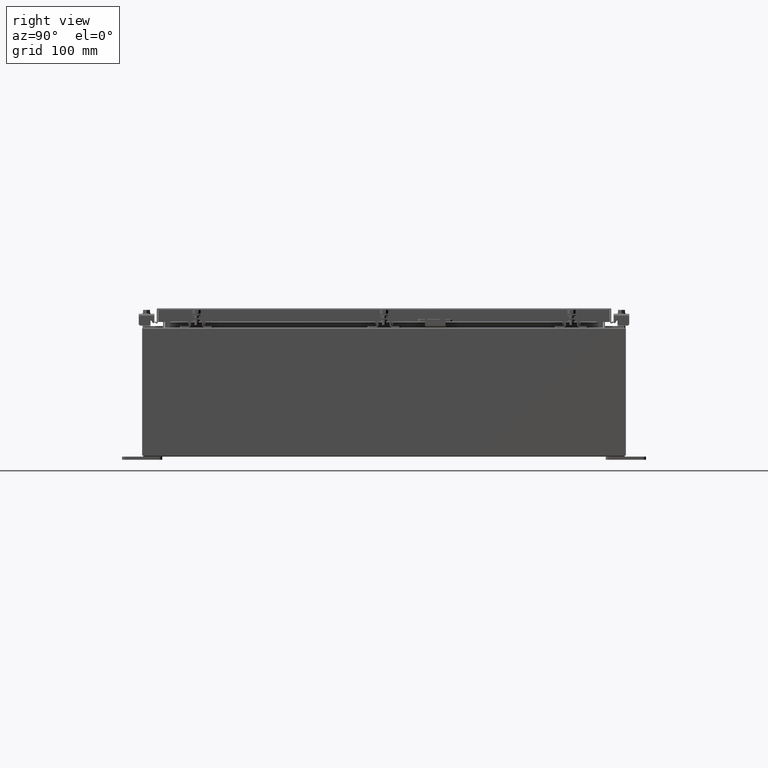
[diagram: clean part render]
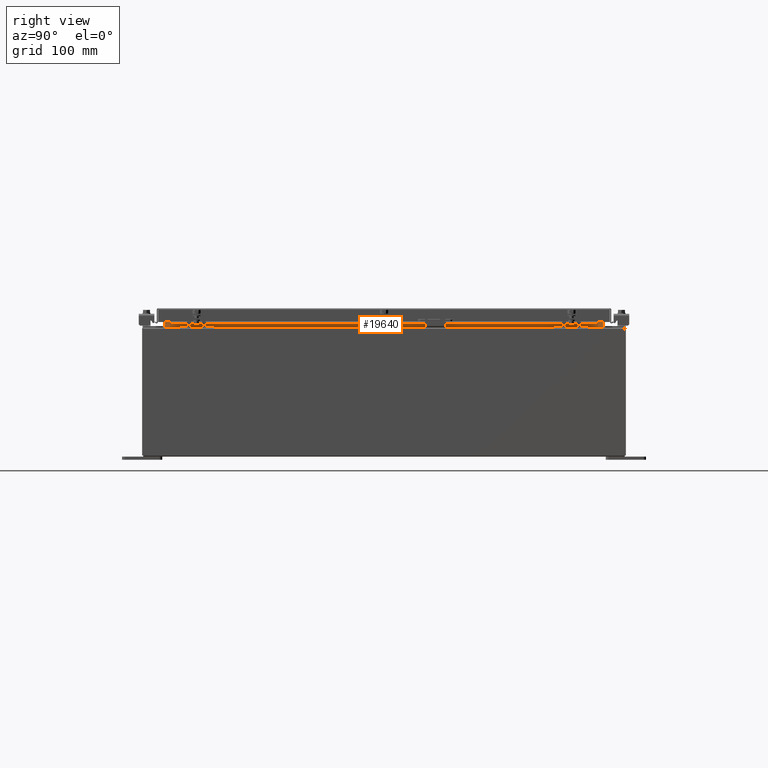
[diagram: same view with one face highlighted and labeled with its STEP entity id]
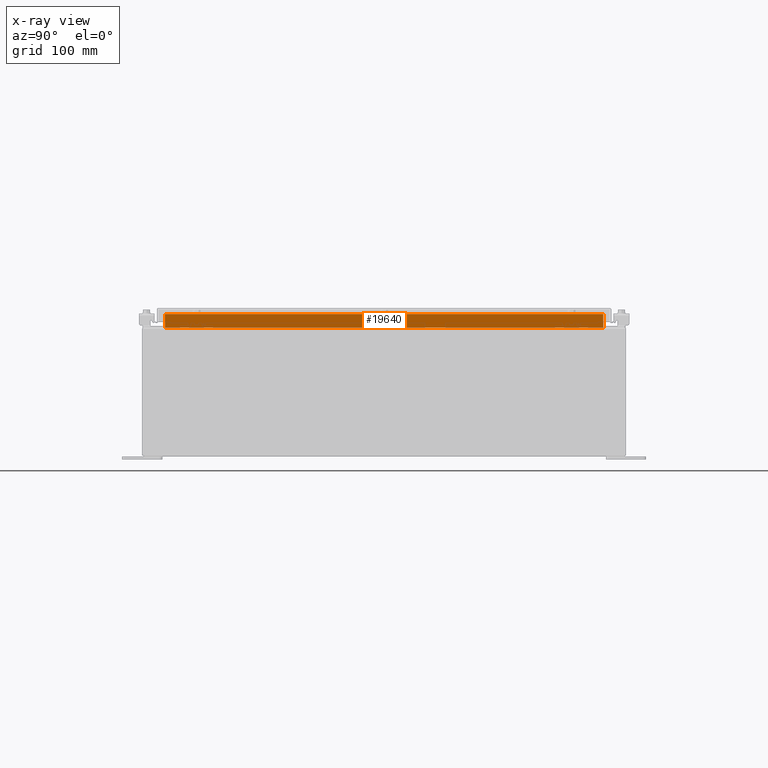
[diagram: x-ray of the same camera — body ghosted, the highlighted face saturated]
A machine part, right view. The second image highlights one B-rep face of the part: STEP entity #19640.
The next image is the same camera in x-ray: the body ghosted, the highlighted face saturated — about 0% of this face is hidden behind the body in this view.
In plain terms, the highlighted planar face has unit normal (1, 0, -0).
Its self-contained STEP definition (entity closure, byte-faithful):
#411 = DIRECTION ( 'NONE',  ( 2.361913319930201500E-015, -0.0000000000000000000, 1.000000000000000000 ) ) ;
#627 = LINE ( 'NONE', #20013, #23762 ) ;
#4323 = AXIS2_PLACEMENT_3D ( 'NONE', #5830, #8896, #30000 ) ;
#5830 = CARTESIAN_POINT ( 'NONE',  ( 13.69970000000001100, 0.0000000000000000000, -3.235532467496111900E-014 ) ) ;
#5954 = CARTESIAN_POINT ( 'NONE',  ( 13.69970000000003200, -13.59375000000000200, 8.762900000000007200 ) ) ;
#6684 = LINE ( 'NONE', #5954, #29831 ) ;
#7911 = ORIENTED_EDGE ( 'NONE', *, *, #34698, .F. ) ;
#8896 = DIRECTION ( 'NONE',  ( 1.000000000000000000, 0.0000000000000000000, -2.361913319930196000E-015 ) ) ;
#9010 = DIRECTION ( 'NONE',  ( 0.0000000000000000000, 1.000000000000000000, 0.0000000000000000000 ) ) ;
#9083 = EDGE_CURVE ( 'NONE', #11130, #16846, #627, .T. ) ;
#10277 = VECTOR ( 'NONE', #411, 39.37007874015748100 ) ;
#10893 = ORIENTED_EDGE ( 'NONE', *, *, #22227, .F. ) ;
#11130 = VERTEX_POINT ( 'NONE', #18227 ) ;
#11282 = CARTESIAN_POINT ( 'NONE',  ( 13.69970000000003000, 13.59375000000000200, 7.938300000000007900 ) ) ;
#13637 = FACE_OUTER_BOUND ( 'NONE', #20169, .T. ) ;
#15348 = CARTESIAN_POINT ( 'NONE',  ( 13.69970000000003000, -13.59375000000000400, 7.938300000000010600 ) ) ;
#15736 = CARTESIAN_POINT ( 'NONE',  ( 13.69970000000003000, 13.59374999999998600, 7.938300000000010600 ) ) ;
#16669 = ORIENTED_EDGE ( 'NONE', *, *, #17692, .F. ) ;
#16846 = VERTEX_POINT ( 'NONE', #15736 ) ;
#17692 = EDGE_CURVE ( 'NONE', #24405, #11130, #6684, .T. ) ;
#18227 = CARTESIAN_POINT ( 'NONE',  ( 13.69970000000003200, 13.59375000000000200, 8.762900000000007200 ) ) ;
#19640 = ADVANCED_FACE ( 'NONE', ( #13637 ), #23932, .T. ) ;
#20013 = CARTESIAN_POINT ( 'NONE',  ( 13.69970000000003000, 13.59375000000000200, 7.925300000000007100 ) ) ;
#20169 = EDGE_LOOP ( 'NONE', ( #29496, #16669, #10893, #7911 ) ) ;
#21511 = CARTESIAN_POINT ( 'NONE',  ( 13.69970000000003200, -13.59375000000000200, 8.850600000000007100 ) ) ;
#22227 = EDGE_CURVE ( 'NONE', #34421, #24405, #35273, .T. ) ;
#23040 = DIRECTION ( 'NONE',  ( -2.361913319930196000E-015, -0.0000000000000000000, -1.000000000000000000 ) ) ;
#23762 = VECTOR ( 'NONE', #23040, 39.37007874015748100 ) ;
#23932 = PLANE ( 'NONE',  #4323 ) ;
#24405 = VERTEX_POINT ( 'NONE', #30748 ) ;
#26318 = DIRECTION ( 'NONE',  ( 8.038541222736220000E-017, -1.000000000000000000, 2.411562366820865800E-016 ) ) ;
#29496 = ORIENTED_EDGE ( 'NONE', *, *, #9083, .F. ) ;
#29831 = VECTOR ( 'NONE', #9010, 39.37007874015748100 ) ;
#29916 = LINE ( 'NONE', #11282, #37896 ) ;
#30000 = DIRECTION ( 'NONE',  ( -2.361913319930196000E-015, 0.0000000000000000000, -1.000000000000000000 ) ) ;
#30748 = CARTESIAN_POINT ( 'NONE',  ( 13.69970000000003200, -13.59375000000000200, 8.762900000000007200 ) ) ;
#34421 = VERTEX_POINT ( 'NONE', #15348 ) ;
#34698 = EDGE_CURVE ( 'NONE', #16846, #34421, #29916, .T. ) ;
#35273 = LINE ( 'NONE', #21511, #10277 ) ;
#37896 = VECTOR ( 'NONE', #26318, 39.37007874015748100 ) ;